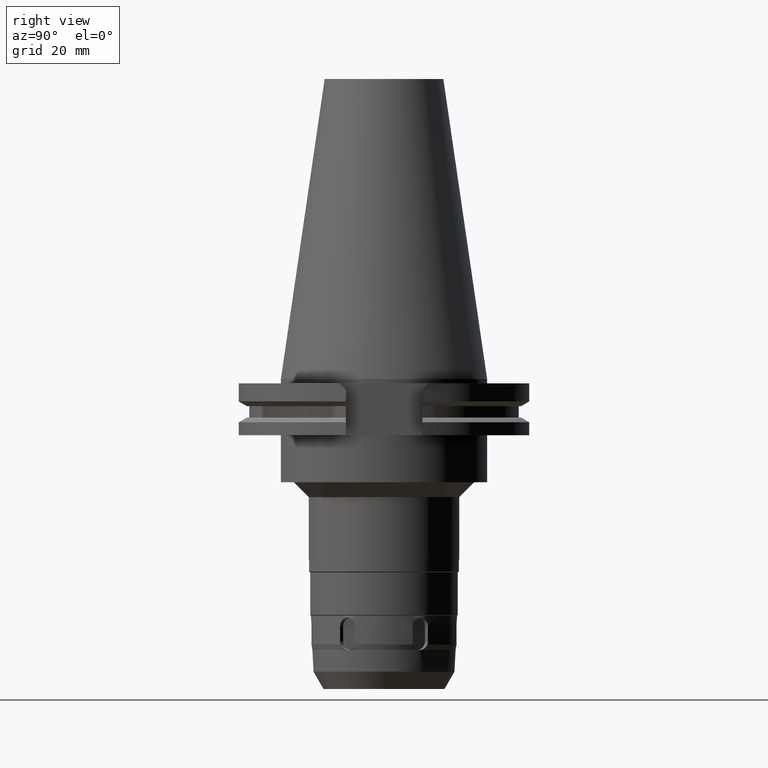
[diagram: clean part render]
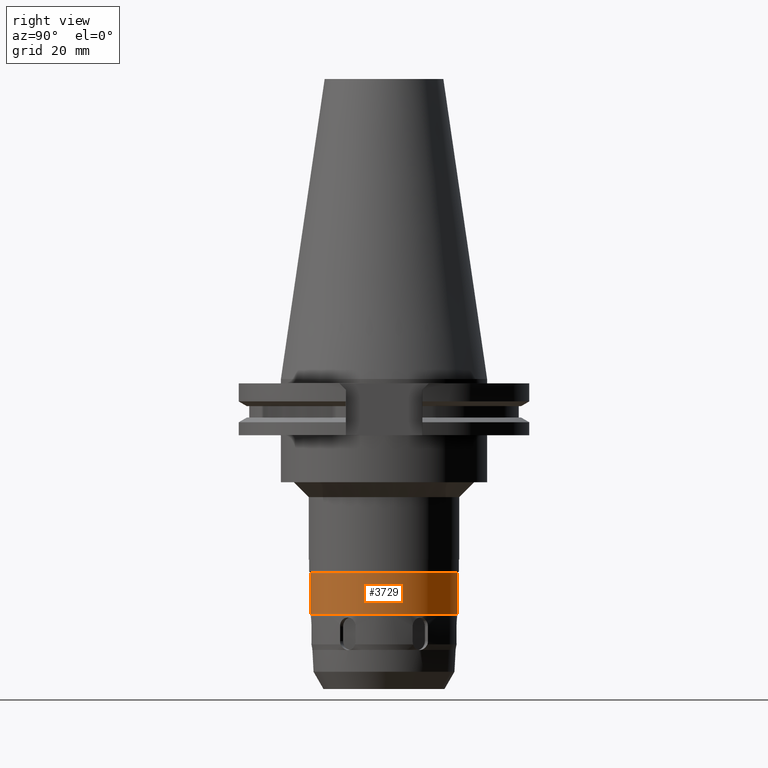
[diagram: same view with one face highlighted and labeled with its STEP entity id]
A machine part, right view. The second image highlights one B-rep face of the part: STEP entity #3729.
In plain terms, the highlighted cylindrical surface (partial cylindrical patch) has radius 25 mm, axis along (0, 0, -1).
Its self-contained STEP definition (entity closure, byte-faithful):
#991=CARTESIAN_POINT('',(0.E0,0.E0,-6.555E1));
#992=DIRECTION('',(0.E0,0.E0,-1.E0));
#993=DIRECTION('',(0.E0,1.E0,0.E0));
#994=AXIS2_PLACEMENT_3D('',#991,#992,#993);
#1030=DIRECTION('',(0.E0,0.E0,-1.E0));
#1031=VECTOR('',#1030,1.435E1);
#1032=CARTESIAN_POINT('',(0.E0,-2.5E1,-6.555E1));
#1033=LINE('',#1032,#1031);
#1037=DIRECTION('',(0.E0,0.E0,-1.E0));
#1038=VECTOR('',#1037,1.435E1);
#1039=CARTESIAN_POINT('',(0.E0,2.5E1,-6.555E1));
#1040=LINE('',#1039,#1038);
#1059=CARTESIAN_POINT('',(0.E0,0.E0,-7.99E1));
#1060=DIRECTION('',(0.E0,0.E0,1.E0));
#1061=DIRECTION('',(0.E0,-1.E0,0.E0));
#1062=AXIS2_PLACEMENT_3D('',#1059,#1060,#1061);
#2724=CARTESIAN_POINT('',(0.E0,2.5E1,-7.99E1));
#2725=VERTEX_POINT('',#2724);
#2726=CARTESIAN_POINT('',(0.E0,-2.5E1,-7.99E1));
#2727=VERTEX_POINT('',#2726);
#2728=CARTESIAN_POINT('',(0.E0,2.5E1,-6.555E1));
#2729=VERTEX_POINT('',#2728);
#2730=CARTESIAN_POINT('',(0.E0,-2.5E1,-6.555E1));
#2731=VERTEX_POINT('',#2730);
#3717=CARTESIAN_POINT('',(0.E0,2.595393961433E-14,1.1193E2));
#3718=DIRECTION('',(0.E0,0.E0,-1.E0));
#3719=DIRECTION('',(0.E0,-1.E0,0.E0));
#3720=AXIS2_PLACEMENT_3D('',#3717,#3718,#3719);
#3721=CYLINDRICAL_SURFACE('',#3720,2.5E1);
#3722=ORIENTED_EDGE('',*,*,#3707,.T.);
#3724=ORIENTED_EDGE('',*,*,#3723,.F.);
#3725=ORIENTED_EDGE('',*,*,#3710,.F.);
#3726=ORIENTED_EDGE('',*,*,#3681,.F.);
#3727=EDGE_LOOP('',(#3722,#3724,#3725,#3726));
#3728=FACE_OUTER_BOUND('',#3727,.F.);
#995=CIRCLE('',#994,2.5E1);
#1063=CIRCLE('',#1062,2.5E1);
#3681=EDGE_CURVE('',#2729,#2731,#995,.T.);
#3707=EDGE_CURVE('',#2729,#2725,#1040,.T.);
#3710=EDGE_CURVE('',#2731,#2727,#1033,.T.);
#3723=EDGE_CURVE('',#2727,#2725,#1063,.T.);
#3729=ADVANCED_FACE('',(#3728),#3721,.T.);